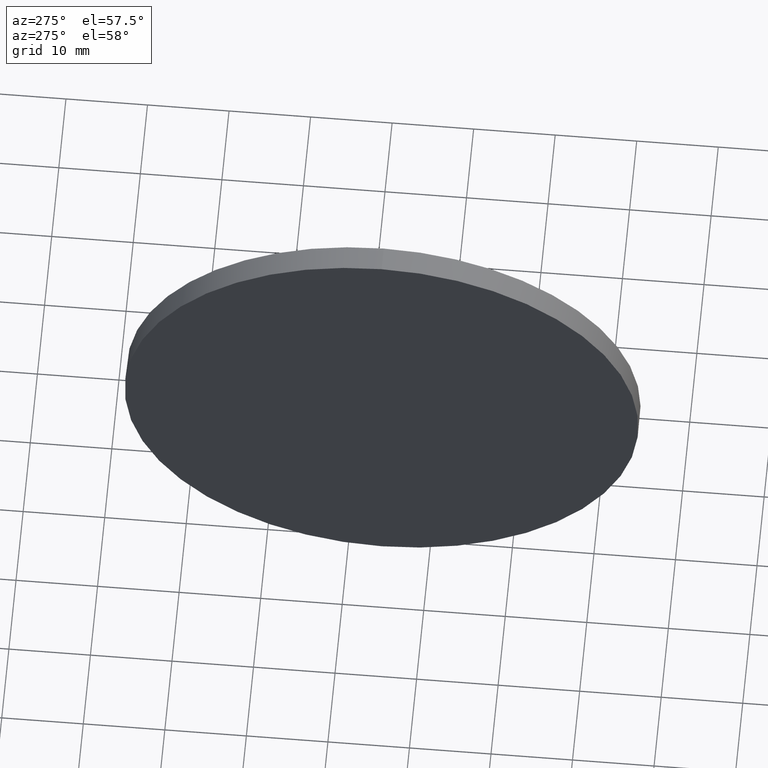
[diagram: clean part render]
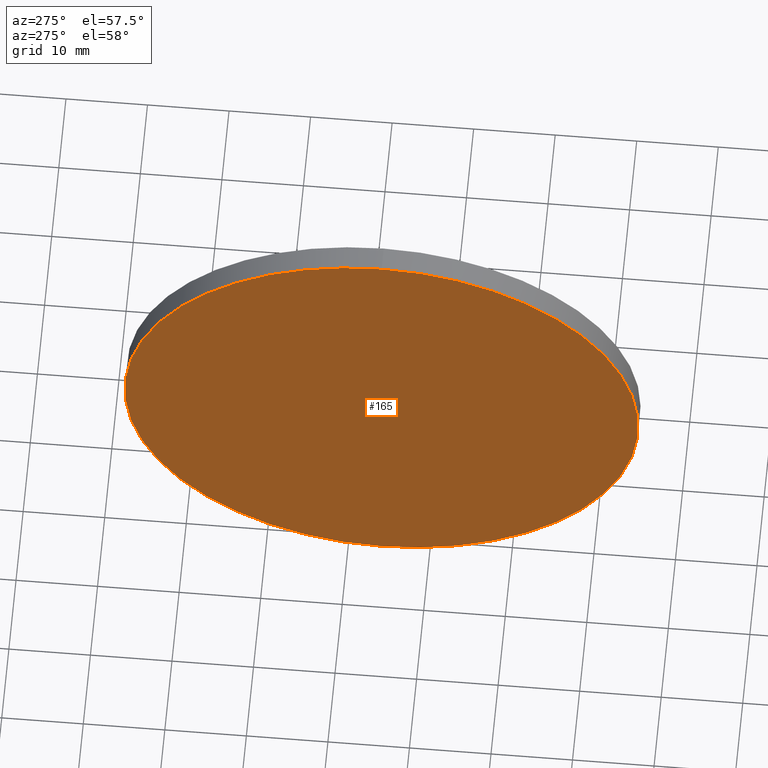
[diagram: same view with one face highlighted and labeled with its STEP entity id]
A machine part, auxiliary view. The second image highlights one B-rep face of the part: STEP entity #165.
In plain terms, the highlighted planar face has unit normal (1, 0, 0).
Its self-contained STEP definition (entity closure, byte-faithful):
#2 = CIRCLE ( 'NONE', #133, 31.50000000000000000 ) ;
#9 = ORIENTED_EDGE ( 'NONE', *, *, #150, .T. ) ;
#16 = DIRECTION ( 'NONE',  ( -1.000000000000000000, -0.0000000000000000000, -0.0000000000000000000 ) ) ;
#25 = VERTEX_POINT ( 'NONE', #60 ) ;
#34 = ORIENTED_EDGE ( 'NONE', *, *, #120, .T. ) ;
#51 = CIRCLE ( 'NONE', #57, 31.50000000000000000 ) ;
#57 = AXIS2_PLACEMENT_3D ( 'NONE', #114, #183, #64 ) ;
#60 = CARTESIAN_POINT ( 'NONE',  ( 527.9541059465552700, -64.13054328457161500, -31.50000000000000000 ) ) ;
#64 = DIRECTION ( 'NONE',  ( 0.0000000000000000000, 0.0000000000000000000, 1.000000000000000000 ) ) ;
#78 = CARTESIAN_POINT ( 'NONE',  ( 527.9541059465552700, -64.13054328457161500, 0.0000000000000000000 ) ) ;
#82 = AXIS2_PLACEMENT_3D ( 'NONE', #78, #113, #112 ) ;
#92 = FACE_OUTER_BOUND ( 'NONE', #166, .T. ) ;
#97 = CARTESIAN_POINT ( 'NONE',  ( 527.9541059465552700, -64.13054328457161500, 31.50000000000000000 ) ) ;
#106 = CARTESIAN_POINT ( 'NONE',  ( 527.9541059465552700, -64.13054328457161500, 0.0000000000000000000 ) ) ;
#112 = DIRECTION ( 'NONE',  ( 0.0000000000000000000, 0.0000000000000000000, -1.000000000000000000 ) ) ;
#113 = DIRECTION ( 'NONE',  ( 1.000000000000000000, 0.0000000000000000000, 0.0000000000000000000 ) ) ;
#114 = CARTESIAN_POINT ( 'NONE',  ( 527.9541059465552700, -64.13054328457161500, 0.0000000000000000000 ) ) ;
#120 = EDGE_CURVE ( 'NONE', #172, #25, #2, .T. ) ;
#126 = DIRECTION ( 'NONE',  ( 0.0000000000000000000, 0.0000000000000000000, 1.000000000000000000 ) ) ;
#133 = AXIS2_PLACEMENT_3D ( 'NONE', #106, #16, #126 ) ;
#150 = EDGE_CURVE ( 'NONE', #25, #172, #51, .T. ) ;
#165 = ADVANCED_FACE ( 'NONE', ( #92 ), #182, .F. ) ;
#166 = EDGE_LOOP ( 'NONE', ( #34, #9 ) ) ;
#172 = VERTEX_POINT ( 'NONE', #97 ) ;
#182 = PLANE ( 'NONE',  #82 ) ;
#183 = DIRECTION ( 'NONE',  ( -1.000000000000000000, -0.0000000000000000000, -0.0000000000000000000 ) ) ;